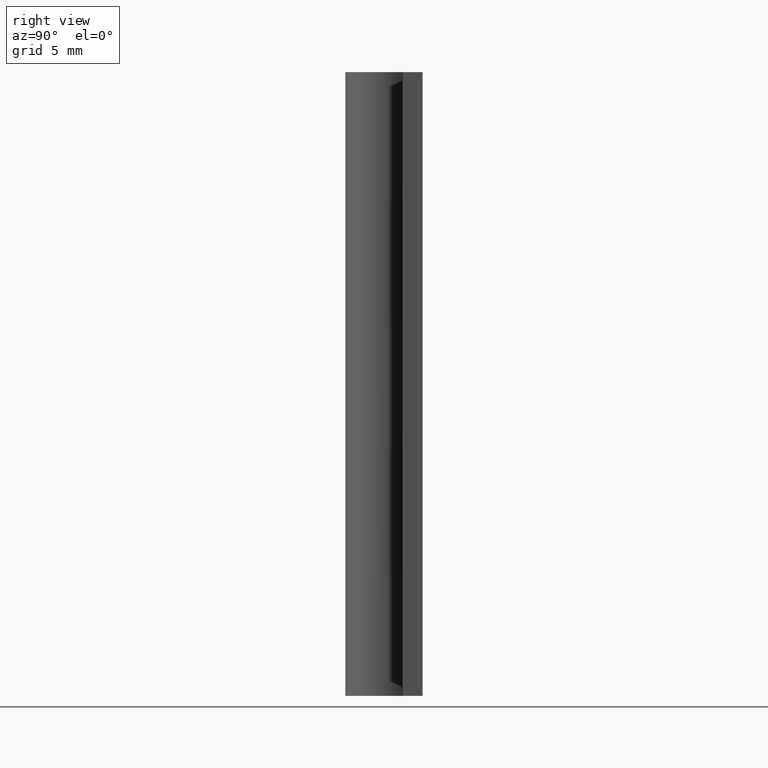
[diagram: clean part render]
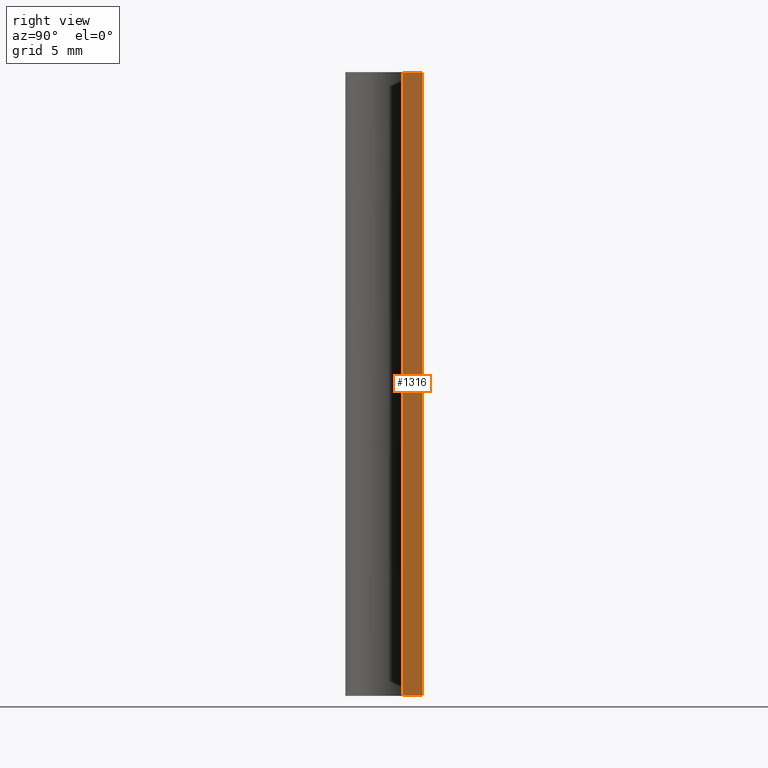
[diagram: same view with one face highlighted and labeled with its STEP entity id]
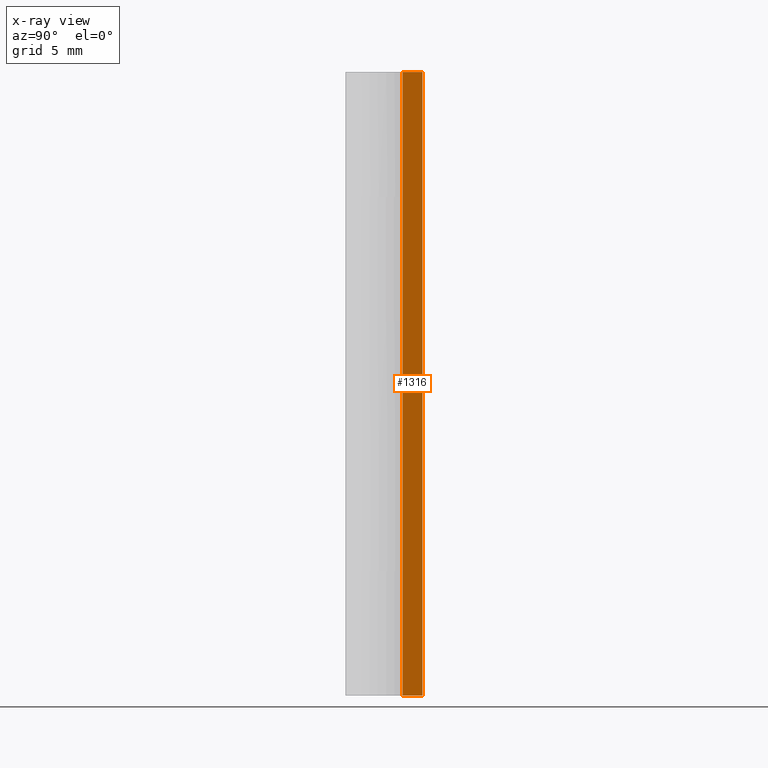
[diagram: x-ray of the same camera — body ghosted, the highlighted face saturated]
A machine part, right view. The second image highlights one B-rep face of the part: STEP entity #1316.
The next image is the same camera in x-ray: the body ghosted, the highlighted face saturated — about 0% of this face is hidden behind the body in this view.
In plain terms, the highlighted face is a freeform B-spline surface patch.
Its self-contained STEP definition (entity closure, byte-faithful):
#1148=CARTESIAN_POINT('',(15.000007999999999,1.500000000000000,0.0));
#1149=VERTEX_POINT('',#1148);
#1204=CARTESIAN_POINT('',(15.000007999999999,3.099998000000000,0.0));
#1205=VERTEX_POINT('',#1204);
#1211=CARTESIAN_POINT('',(15.000007999999999,1.500000000000000,0.0));
#1212=CARTESIAN_POINT('',(15.000007999999999,3.099998000000000,0.0));
#1213=QUASI_UNIFORM_CURVE('',1,(#1211,#1212),.UNSPECIFIED.,.F.,.U.);
#1214=EDGE_CURVE('',#1149,#1205,#1213,.T.);
#1226=CARTESIAN_POINT('',(15.000007999999999,1.500000000000000,49.999993000000003));
#1227=VERTEX_POINT('',#1226);
#1233=CARTESIAN_POINT('',(15.000007999999999,3.099998000000000,49.999993000000003));
#1234=VERTEX_POINT('',#1233);
#1235=CARTESIAN_POINT('',(15.000007999999999,1.500000000000000,49.999993000000003));
#1236=CARTESIAN_POINT('',(15.000007999999999,3.099998000000000,49.999993000000003));
#1237=QUASI_UNIFORM_CURVE('',1,(#1235,#1236),.UNSPECIFIED.,.F.,.U.);
#1238=EDGE_CURVE('',#1227,#1234,#1237,.T.);
#1297=CARTESIAN_POINT('',(15.000007999999999,1.420080103001106,-2.497499374805216));
#1298=CARTESIAN_POINT('',(15.000007999999999,1.420080103001106,52.497490139631353));
#1299=CARTESIAN_POINT('',(15.000007999999999,3.179917939914184,-2.497499374805216));
#1300=CARTESIAN_POINT('',(15.000007999999999,3.179917939914184,52.497490139631353));
#1301=B_SPLINE_SURFACE_WITH_KNOTS('',1,1,((#1297,#1299),(#1298,#1300)),.UNSPECIFIED.,.F.,.F.,.U.,(2,2),(2,2),(0.0,54.994989514436568),(0.041708334948495,0.958291687403247),.UNSPECIFIED.);
#1302=ORIENTED_EDGE('',*,*,#1214,.T.);
#1303=CARTESIAN_POINT('',(15.000007999999999,3.099998000000000,49.999993000000003));
#1304=CARTESIAN_POINT('',(15.000007999999999,3.099998000000000,0.0));
#1305=QUASI_UNIFORM_CURVE('',1,(#1303,#1304),.UNSPECIFIED.,.F.,.U.);
#1306=EDGE_CURVE('',#1234,#1205,#1305,.T.);
#1307=ORIENTED_EDGE('',*,*,#1306,.F.);
#1308=ORIENTED_EDGE('',*,*,#1238,.F.);
#1309=CARTESIAN_POINT('',(15.000007999999999,1.500000000000000,49.999993000000003));
#1310=CARTESIAN_POINT('',(15.000007999999999,1.500000000000000,0.0));
#1311=QUASI_UNIFORM_CURVE('',1,(#1309,#1310),.UNSPECIFIED.,.F.,.U.);
#1312=EDGE_CURVE('',#1227,#1149,#1311,.T.);
#1313=ORIENTED_EDGE('',*,*,#1312,.T.);
#1314=EDGE_LOOP('',(#1302,#1307,#1308,#1313));
#1315=FACE_OUTER_BOUND('',#1314,.T.);
#1316=ADVANCED_FACE('',(#1315),#1301,.F.);